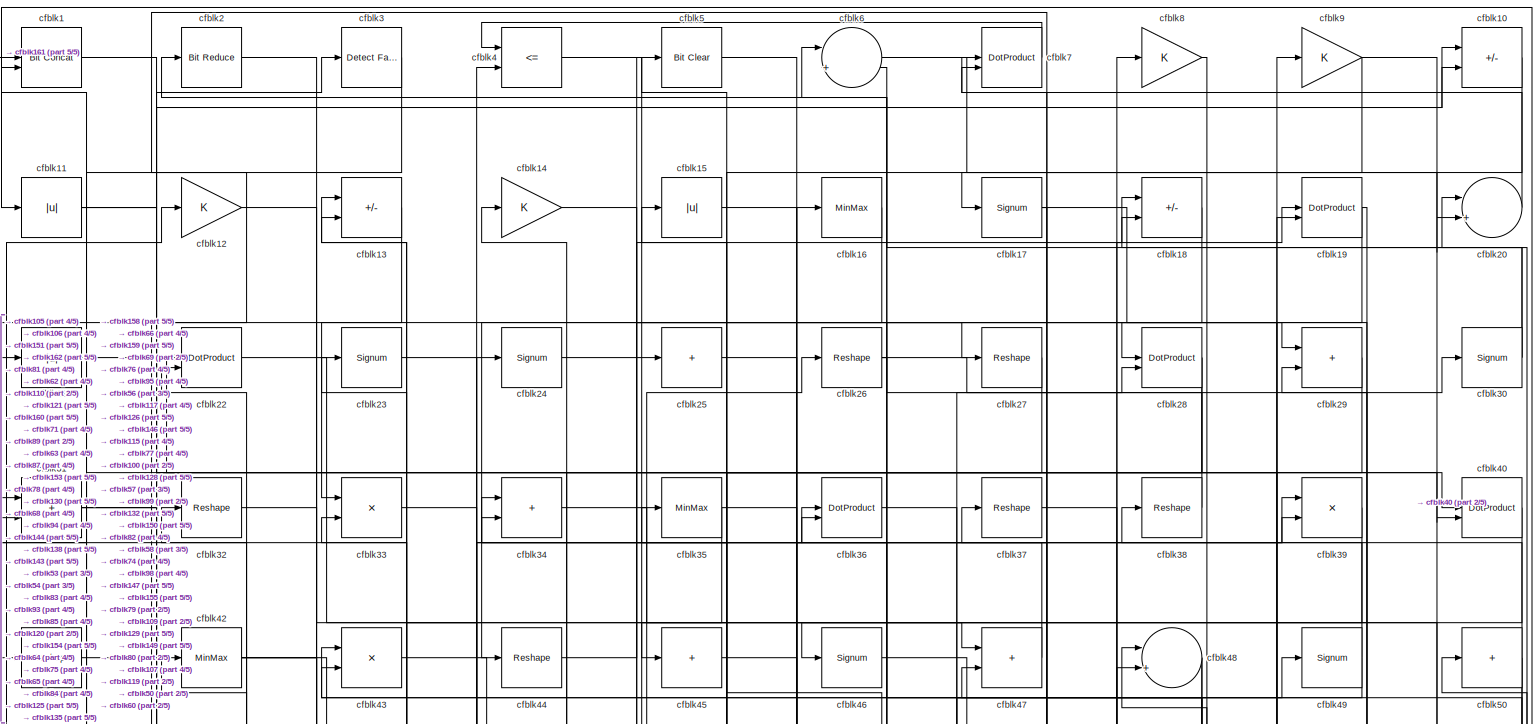
[diagram: root canvas - part 1/5, full width, top band]
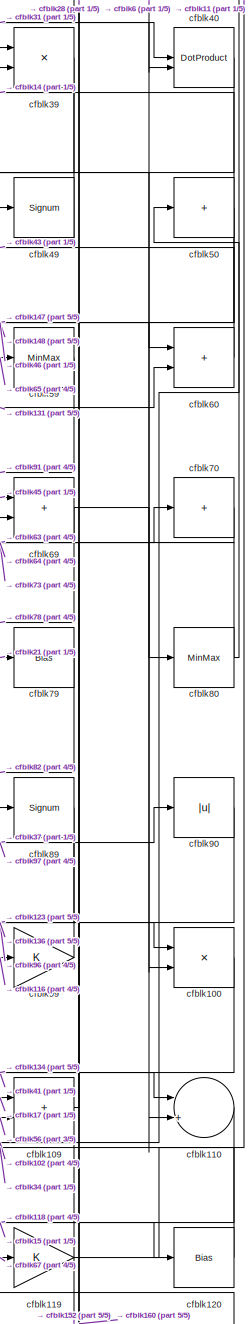
[diagram: root canvas - part 2/5, middle right region]
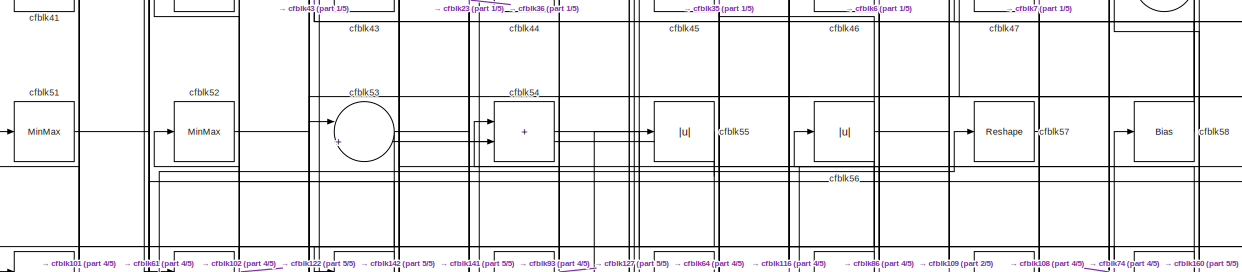
[diagram: root canvas - part 3/5, full width, top band]
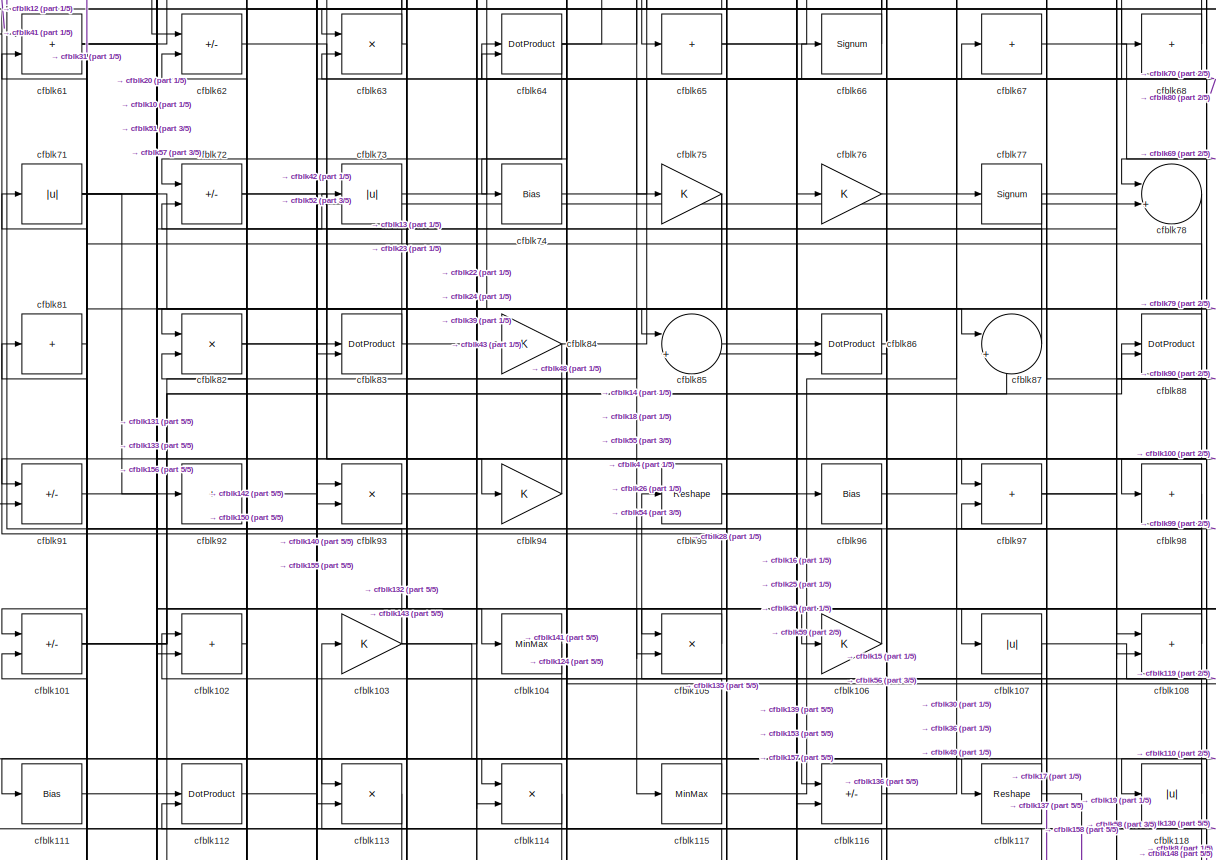
[diagram: root canvas - part 4/5, full width, middle band]
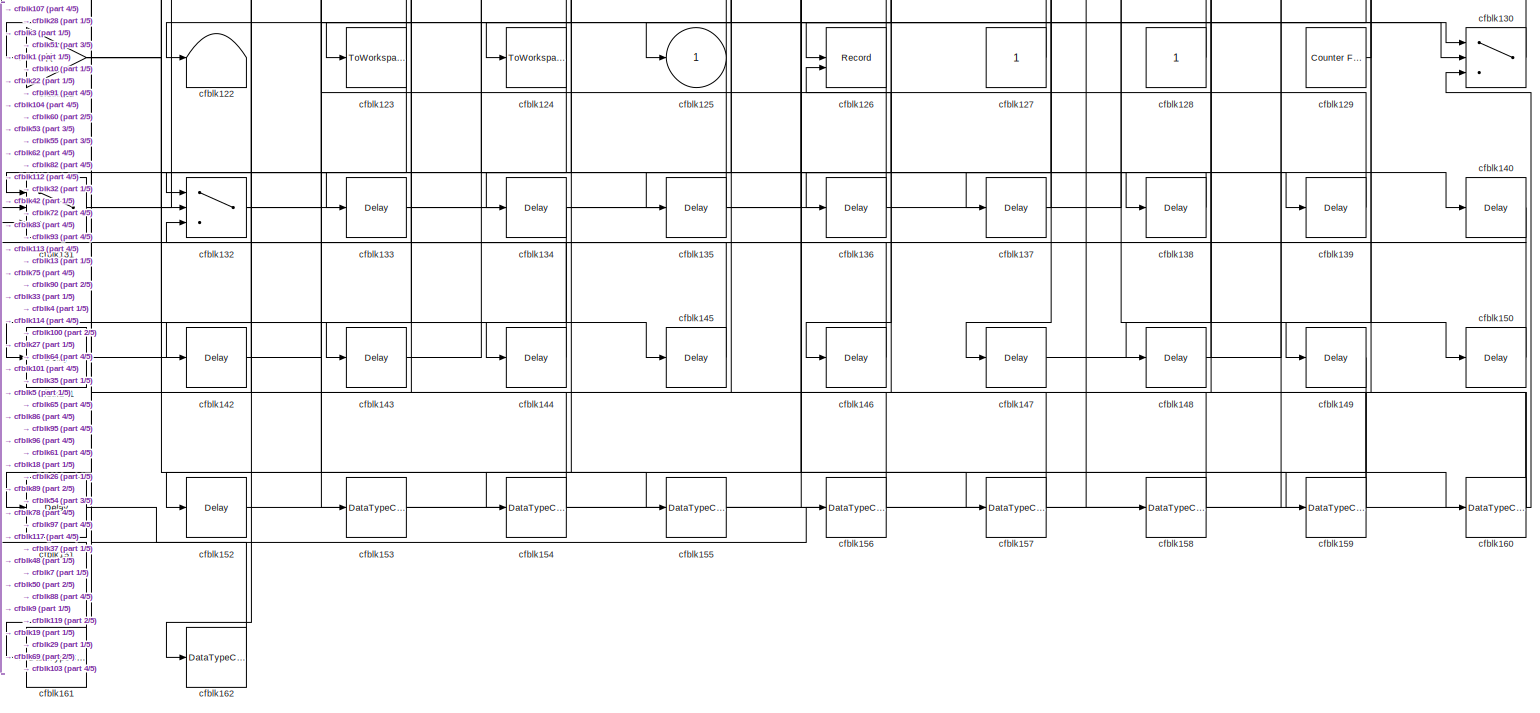
[diagram: root canvas - part 5/5, full width, bottom band]
MODEL slx_7d39bafed001
KIND model
CONFIG AbsTol = auto
CONFIG EnableMultiTasking = off
CONFIG FixedStep = auto
CONFIG MaxStep = auto
CONFIG MinStep = auto
CONFIG RelTol = 1e-3
CONFIG SampleTimeConstraint = Unconstrained
CONFIG SolverName = VariableStepAuto
CONFIG StartTime = 0.0
CONFIG StopTime = 10.0
BLOCK [Reference] cfblk1  REF=hdlsllib/Logic and Bit
Operations/Bit Concat
  SourceBlock = hdlsllib/Logic and Bit\nOperations/Bit Concat
  SourceType = Bit Concat
BLOCK [Sum] cfblk10
  IconShape = rectangular
  Inputs = +-
BLOCK [Product] cfblk100
  Inputs = */
  RndMeth = Zero
  SaturateOnIntegerOverflow = on
BLOCK [Sum] cfblk101
  IconShape = rectangular
  Inputs = +-
BLOCK [Sum] cfblk102
  IconShape = rectangular
BLOCK [Gain] cfblk103
BLOCK [MinMax] cfblk104
BLOCK [Product] cfblk105
  Inputs = */
  RndMeth = Zero
  SaturateOnIntegerOverflow = on
BLOCK [Gain] cfblk106
BLOCK [Abs] cfblk107
  SaturateOnIntegerOverflow = off
BLOCK [Sum] cfblk108
  IconShape = rectangular
BLOCK [Sum] cfblk109
  IconShape = rectangular
BLOCK [Abs] cfblk11
  SaturateOnIntegerOverflow = off
BLOCK [Sum] cfblk110
  Inputs = |++
BLOCK [Bias] cfblk111
  Bias = 0.0
  SaturateOnIntegerOverflow = off
BLOCK [DotProduct] cfblk112
  OutDataTypeStr = Inherit: Inherit via internal rule
BLOCK [Product] cfblk113
  Inputs = */
  RndMeth = Zero
  SaturateOnIntegerOverflow = on
BLOCK [Product] cfblk114
  Inputs = */
  RndMeth = Zero
  SaturateOnIntegerOverflow = on
BLOCK [MinMax] cfblk115
BLOCK [Sum] cfblk116
  IconShape = rectangular
  Inputs = +-
BLOCK [Reshape] cfblk117
BLOCK [Abs] cfblk118
  SaturateOnIntegerOverflow = off
BLOCK [Gain] cfblk119
BLOCK [Gain] cfblk12
BLOCK [Bias] cfblk120
  Bias = 0.0
  SaturateOnIntegerOverflow = off
BLOCK [Gain] cfblk121
BLOCK [Terminator] cfblk122
BLOCK [ToWorkspace] cfblk123
  MaxDataPoints = inf
  SampleTime = -1
  SaveFormat = Timeseries
  VariableName = simout
BLOCK [ToWorkspace] cfblk124
  MaxDataPoints = inf
  SampleTime = -1
  SaveFormat = Timeseries
  VariableName = simout
BLOCK [Outport] cfblk125
  VectorParamsAs1DForOutWhenUnconnected = off
BLOCK [Record] cfblk126
  CompatibilityTag = XY
  FileSettingsInternal = {"entries":[{"content":{"excelSettings":{"content":{},"type":"Streamout.ExcelSettings"}},"type":"Streamout.FileSettingStorage","uuid":""}],"packageUris":["http:\/\/schema.mathworks.com\/mf0\/streamout_blocks\/R2020a"],"version":"1.0"}
  Layout = [1 1]
  SignalsInternal = {"entries":[{"content":{"signals":[{"content":{"blockPath":[],"dimensions":[1],"domain":"","lineColor":"#a2142f","plots":[1],"port":1,"signalID":1674,"signalName":"XY Graph:1"},"type":"RecordBlkView.Signal","uuid":""},{"content":{"blockPath":[],"dimensions":[1],"domain":"","lineColor":"#139fff","plots":[1],"port":2,"signalID":1677,"signalName":"XY Graph:2"},"type":"RecordBlkView.Signal","uuid":""}...<+146ch>
  VisualizationBindings = {"xyplotplugin":{"info":[{"series":[{"bindingParametersList":[{"parameter":"X-Axis","signalID":1674,"signalName":"XY Graph:1"},{"parameter":"Y-Axis","signalID":1677,"signalName":"XY Graph:2"}],"seriesID":22489}],"subplotID":1}]}}
  st = -1
BLOCK [Constant] cfblk127
  SampleTime = -1
BLOCK [Constant] cfblk128
  SampleTime = -1
BLOCK [Reference] cfblk129  REF=hdlsllib/Sources/Counter
Free-Running
  SourceBlock = hdlsllib/Sources/Counter\nFree-Running
  SourceType = Counter Free-Running
BLOCK [Sum] cfblk13
  IconShape = rectangular
  Inputs = +-
BLOCK [Switch] cfblk130
  InputSameDT = off
  SaturateOnIntegerOverflow = off
BLOCK [Switch] cfblk131
  InputSameDT = off
  SaturateOnIntegerOverflow = off
BLOCK [Switch] cfblk132
  InputSameDT = off
  SaturateOnIntegerOverflow = off
BLOCK [Delay] cfblk133
  InputPortMap = u0
  SampleTime = 1
BLOCK [Delay] cfblk134
  InputPortMap = u0
  SampleTime = 1
BLOCK [Delay] cfblk135
  InputPortMap = u0
  SampleTime = 1
BLOCK [Delay] cfblk136
  InputPortMap = u0
  SampleTime = 1
BLOCK [Delay] cfblk137
  InputPortMap = u0
  SampleTime = 1
BLOCK [Delay] cfblk138
  InputPortMap = u0
  SampleTime = 1
BLOCK [Delay] cfblk139
  InputPortMap = u0
  SampleTime = 1
BLOCK [Gain] cfblk14
BLOCK [Delay] cfblk140
  InputPortMap = u0
  SampleTime = 1
BLOCK [Delay] cfblk141
  InputPortMap = u0
  SampleTime = 1
BLOCK [Delay] cfblk142
  InputPortMap = u0
  SampleTime = 1
BLOCK [Delay] cfblk143
  InputPortMap = u0
  SampleTime = 1
BLOCK [Delay] cfblk144
  InputPortMap = u0
  SampleTime = 1
BLOCK [Delay] cfblk145
  InputPortMap = u0
  SampleTime = 1
BLOCK [Delay] cfblk146
  InputPortMap = u0
  SampleTime = 1
BLOCK [Delay] cfblk147
  InputPortMap = u0
  SampleTime = 1
BLOCK [Delay] cfblk148
  InputPortMap = u0
  SampleTime = 1
BLOCK [Delay] cfblk149
  InputPortMap = u0
  SampleTime = 1
BLOCK [Abs] cfblk15
  SaturateOnIntegerOverflow = off
BLOCK [Delay] cfblk150
  InputPortMap = u0
  SampleTime = 1
BLOCK [Delay] cfblk151
  InputPortMap = u0
  SampleTime = 1
BLOCK [Delay] cfblk152
  InputPortMap = u0
  SampleTime = 1
BLOCK [DataTypeConversion] cfblk153
  OutDataTypeStr = uint8
  RndMeth = Floor
  SaturateOnIntegerOverflow = off
BLOCK [DataTypeConversion] cfblk154
  OutDataTypeStr = uint8
  RndMeth = Floor
  SaturateOnIntegerOverflow = off
BLOCK [DataTypeConversion] cfblk155
  OutDataTypeStr = uint8
  RndMeth = Floor
  SaturateOnIntegerOverflow = off
BLOCK [DataTypeConversion] cfblk156
  OutDataTypeStr = uint8
  RndMeth = Floor
  SaturateOnIntegerOverflow = off
BLOCK [DataTypeConversion] cfblk157
  OutDataTypeStr = uint8
  RndMeth = Floor
  SaturateOnIntegerOverflow = off
BLOCK [DataTypeConversion] cfblk158
  OutDataTypeStr = boolean
  RndMeth = Floor
  SaturateOnIntegerOverflow = off
BLOCK [DataTypeConversion] cfblk159
  RndMeth = Floor
  SaturateOnIntegerOverflow = off
BLOCK [MinMax] cfblk16
BLOCK [DataTypeConversion] cfblk160
  RndMeth = Floor
  SaturateOnIntegerOverflow = off
BLOCK [DataTypeConversion] cfblk161
  OutDataTypeStr = uint8
  RndMeth = Floor
  SaturateOnIntegerOverflow = off
BLOCK [DataTypeConversion] cfblk162
  OutDataTypeStr = uint8
  RndMeth = Floor
  SaturateOnIntegerOverflow = off
BLOCK [Signum] cfblk17
BLOCK [Sum] cfblk18
  IconShape = rectangular
  Inputs = +-
BLOCK [DotProduct] cfblk19
  OutDataTypeStr = Inherit: Inherit via internal rule
BLOCK [Reference] cfblk2  REF=hdlsllib/Logic and Bit
Operations/Bit Reduce
  SourceBlock = hdlsllib/Logic and Bit\nOperations/Bit Reduce
  SourceType = Bit Reduce
BLOCK [Sum] cfblk20
  Inputs = |++
BLOCK [Abs] cfblk21
  SaturateOnIntegerOverflow = off
BLOCK [DotProduct] cfblk22
  OutDataTypeStr = Inherit: Inherit via internal rule
BLOCK [Signum] cfblk23
BLOCK [Signum] cfblk24
BLOCK [Sum] cfblk25
  IconShape = rectangular
  Inputs = +
BLOCK [Reshape] cfblk26
BLOCK [Reshape] cfblk27
BLOCK [DotProduct] cfblk28
  OutDataTypeStr = Inherit: Inherit via internal rule
BLOCK [Sum] cfblk29
  IconShape = rectangular
BLOCK [Reference] cfblk3  REF=hdlsllib/Logic and Bit
Operations/Detect Fall
Negative
  SourceBlock = hdlsllib/Logic and Bit\nOperations/Detect Fall\nNegative
  SourceType = Detect Fall Negative
BLOCK [Signum] cfblk30
BLOCK [Sum] cfblk31
  IconShape = rectangular
BLOCK [Reshape] cfblk32
BLOCK [Product] cfblk33
  Inputs = */
  RndMeth = Zero
  SaturateOnIntegerOverflow = on
BLOCK [Sum] cfblk34
  IconShape = rectangular
BLOCK [MinMax] cfblk35
BLOCK [DotProduct] cfblk36
  OutDataTypeStr = Inherit: Inherit via internal rule
BLOCK [Reshape] cfblk37
BLOCK [Reshape] cfblk38
BLOCK [Product] cfblk39
  Inputs = */
  RndMeth = Zero
  SaturateOnIntegerOverflow = on
BLOCK [RelationalOperator] cfblk4
  InputSameDT = off
  Operator = <=
  OutDataTypeStr = boolean
BLOCK [DotProduct] cfblk40
  OutDataTypeStr = Inherit: Inherit via internal rule
BLOCK [Reshape] cfblk41
BLOCK [MinMax] cfblk42
BLOCK [Product] cfblk43
  Inputs = */
  RndMeth = Zero
  SaturateOnIntegerOverflow = on
BLOCK [Reshape] cfblk44
BLOCK [Sum] cfblk45
  IconShape = rectangular
  Inputs = +
BLOCK [Signum] cfblk46
BLOCK [Sum] cfblk47
  IconShape = rectangular
BLOCK [Sum] cfblk48
  Inputs = |++
BLOCK [Signum] cfblk49
BLOCK [Reference] cfblk5  REF=simulink/Logic and Bit
Operations/Bit Clear
  LibrarySourceBlock = hdlsllib/Logic and Bit\nOperations/Bit Clear
  SourceBlock = simulink/Logic and Bit\nOperations/Bit Clear
  SourceType = Bit Clear
BLOCK [Sum] cfblk50
  IconShape = rectangular
  Inputs = +
BLOCK [MinMax] cfblk51
BLOCK [MinMax] cfblk52
BLOCK [Sum] cfblk53
  Inputs = |++
BLOCK [Sum] cfblk54
  IconShape = rectangular
BLOCK [Abs] cfblk55
  SaturateOnIntegerOverflow = off
BLOCK [Abs] cfblk56
  SaturateOnIntegerOverflow = off
BLOCK [Reshape] cfblk57
BLOCK [Bias] cfblk58
  Bias = 0.0
  SaturateOnIntegerOverflow = off
BLOCK [MinMax] cfblk59
BLOCK [Sum] cfblk6
  Inputs = |++
BLOCK [Sum] cfblk60
  IconShape = rectangular
BLOCK [Sum] cfblk61
  IconShape = rectangular
BLOCK [Sum] cfblk62
  IconShape = rectangular
  Inputs = +-
BLOCK [Product] cfblk63
  Inputs = */
  RndMeth = Zero
  SaturateOnIntegerOverflow = on
BLOCK [DotProduct] cfblk64
  OutDataTypeStr = Inherit: Inherit via internal rule
BLOCK [Sum] cfblk65
  IconShape = rectangular
  Inputs = +
BLOCK [Signum] cfblk66
BLOCK [Sum] cfblk67
  IconShape = rectangular
  Inputs = +
BLOCK [Sum] cfblk68
  IconShape = rectangular
  Inputs = +
BLOCK [Sum] cfblk69
  IconShape = rectangular
BLOCK [DotProduct] cfblk7
  OutDataTypeStr = Inherit: Inherit via internal rule
BLOCK [Sum] cfblk70
  IconShape = rectangular
  Inputs = +
BLOCK [Abs] cfblk71
  SaturateOnIntegerOverflow = off
BLOCK [Sum] cfblk72
  IconShape = rectangular
  Inputs = +-
BLOCK [Abs] cfblk73
  SaturateOnIntegerOverflow = off
BLOCK [Bias] cfblk74
  Bias = 0.0
  SaturateOnIntegerOverflow = off
BLOCK [Gain] cfblk75
BLOCK [Gain] cfblk76
BLOCK [Signum] cfblk77
BLOCK [Sum] cfblk78
  Inputs = |++
BLOCK [Bias] cfblk79
  Bias = 0.0
  SaturateOnIntegerOverflow = off
BLOCK [Gain] cfblk8
BLOCK [MinMax] cfblk80
BLOCK [Sum] cfblk81
  IconShape = rectangular
  Inputs = +
BLOCK [Product] cfblk82
  Inputs = */
  RndMeth = Zero
  SaturateOnIntegerOverflow = on
BLOCK [DotProduct] cfblk83
  OutDataTypeStr = Inherit: Inherit via internal rule
BLOCK [Gain] cfblk84
BLOCK [Sum] cfblk85
  Inputs = |++
BLOCK [DotProduct] cfblk86
  OutDataTypeStr = Inherit: Inherit via internal rule
BLOCK [Sum] cfblk87
  Inputs = |++
BLOCK [DotProduct] cfblk88
  OutDataTypeStr = Inherit: Inherit via internal rule
BLOCK [Signum] cfblk89
BLOCK [Gain] cfblk9
BLOCK [Abs] cfblk90
  SaturateOnIntegerOverflow = off
BLOCK [Sum] cfblk91
  IconShape = rectangular
  Inputs = +-
BLOCK [Sum] cfblk92
  IconShape = rectangular
  Inputs = +
BLOCK [Product] cfblk93
  Inputs = */
  RndMeth = Zero
  SaturateOnIntegerOverflow = on
BLOCK [Gain] cfblk94
BLOCK [Reshape] cfblk95
BLOCK [Bias] cfblk96
  Bias = 0.0
  SaturateOnIntegerOverflow = off
BLOCK [Sum] cfblk97
  IconShape = rectangular
BLOCK [Sum] cfblk98
  IconShape = rectangular
  Inputs = +
BLOCK [Gain] cfblk99
LINE cfblk100:1 -> cfblk134:1
NET cfblk101:1 -> cfblk66:1, cfblk87:2, cfblk88:1
LINE cfblk102:1 -> cfblk52:1
NET cfblk103:1 -> cfblk117:1, cfblk67:1, cfblk71:1
LINE cfblk104:1 -> cfblk111:1
LINE cfblk105:1 -> cfblk41:1
LINE cfblk106:1 -> cfblk12:1
NET cfblk107:1 -> cfblk131:3, cfblk20:1
NET cfblk108:1 -> cfblk81:1, cfblk85:2
LINE cfblk109:1 -> cfblk28:1
LINE cfblk10:1 -> cfblk125:1
LINE cfblk110:1 -> cfblk118:1
LINE cfblk111:1 -> cfblk73:1
LINE cfblk112:1 -> cfblk155:1
LINE cfblk113:1 -> cfblk132:1
LINE cfblk114:1 -> cfblk141:1
NET cfblk115:1 -> cfblk23:1, cfblk30:1
LINE cfblk116:1 -> cfblk99:1
NET cfblk117:1 -> cfblk158:1, cfblk36:2
LINE cfblk118:1 -> cfblk95:1
NET cfblk119:1 -> cfblk102:1, cfblk11:1, cfblk152:1
NET cfblk11:1 -> cfblk3:1, cfblk40:2
LINE cfblk120:1 -> cfblk34:2
NET cfblk121:1 -> cfblk10:1, cfblk144:1, cfblk145:1
LINE cfblk127:1 -> cfblk54:1
LINE cfblk128:1 -> cfblk7:2
LINE cfblk129:1 -> cfblk29:2
LINE cfblk12:1 -> cfblk78:2
LINE cfblk130:1 -> cfblk103:1
NET cfblk131:1 -> cfblk104:1, cfblk60:2
NET cfblk132:1 -> cfblk48:2, cfblk93:1
LINE cfblk133:1 -> cfblk86:1
LINE cfblk134:1 -> cfblk161:1
LINE cfblk135:1 -> cfblk101:2
LINE cfblk136:1 -> cfblk61:1
LINE cfblk137:1 -> cfblk97:2
LINE cfblk138:1 -> cfblk132:2
LINE cfblk139:1 -> cfblk83:1
LINE cfblk13:1 -> cfblk21:1
LINE cfblk140:1 -> cfblk132:3
LINE cfblk141:1 -> cfblk53:1
LINE cfblk142:1 -> cfblk82:2
LINE cfblk143:1 -> cfblk4:2
LINE cfblk144:1 -> cfblk13:2
LINE cfblk145:1 -> cfblk131:2
LINE cfblk146:1 -> cfblk22:1
LINE cfblk147:1 -> cfblk19:2
LINE cfblk148:1 -> cfblk88:2
LINE cfblk149:1 -> cfblk162:1
LINE cfblk14:1 -> cfblk75:1
LINE cfblk150:1 -> cfblk62:2
LINE cfblk151:1 -> cfblk156:1
LINE cfblk152:1 -> cfblk130:3
LINE cfblk153:1 -> cfblk96:1
LINE cfblk154:1 -> cfblk32:1
LINE cfblk155:1 -> cfblk9:1
LINE cfblk156:1 -> cfblk112:1
LINE cfblk157:1 -> cfblk112:2
LINE cfblk158:1 -> cfblk5:1
NET cfblk159:1 -> cfblk126:2, cfblk33:2
LINE cfblk15:1 -> cfblk120:1
NET cfblk160:1 -> cfblk48:1, cfblk51:1, cfblk69:2
LINE cfblk161:1 -> cfblk1:1
LINE cfblk162:1 -> cfblk1:2
LINE cfblk16:1 -> cfblk33:1
NET cfblk17:1 -> cfblk107:1, cfblk109:1
LINE cfblk18:1 -> cfblk126:1
NET cfblk19:1 -> cfblk149:1, cfblk44:1
LINE cfblk1:1 -> cfblk160:1
LINE cfblk20:1 -> cfblk62:1
LINE cfblk21:1 -> cfblk79:1
LINE cfblk22:1 -> cfblk84:1
LINE cfblk23:1 -> cfblk54:2
LINE cfblk24:1 -> cfblk29:1
LINE cfblk25:1 -> cfblk76:1
NET cfblk26:1 -> cfblk146:1, cfblk28:2
LINE cfblk27:1 -> cfblk154:1
NET cfblk28:1 -> cfblk105:1, cfblk121:1
LINE cfblk29:1 -> cfblk135:1
LINE cfblk2:1 -> cfblk47:1
NET cfblk30:1 -> cfblk18:1, cfblk6:2
NET cfblk31:1 -> cfblk40:1, cfblk89:1
LINE cfblk32:1 -> cfblk153:1
LINE cfblk33:1 -> cfblk138:1
LINE cfblk34:1 -> cfblk80:1
NET cfblk35:1 -> cfblk130:2, cfblk63:1
LINE cfblk36:1 -> cfblk77:1
LINE cfblk37:1 -> cfblk150:1
LINE cfblk38:1 -> cfblk2:1
LINE cfblk39:1 -> cfblk46:1
LINE cfblk3:1 -> cfblk151:1
LINE cfblk40:1 -> cfblk45:1
LINE cfblk41:1 -> cfblk110:1
NET cfblk42:1 -> cfblk130:1, cfblk68:1, cfblk94:1
LINE cfblk43:1 -> cfblk85:1
LINE cfblk44:1 -> cfblk25:1
LINE cfblk45:1 -> cfblk69:1
LINE cfblk46:1 -> cfblk100:2
LINE cfblk47:1 -> cfblk34:1
NET cfblk48:1 -> cfblk74:1, cfblk83:2
NET cfblk49:1 -> cfblk38:1, cfblk47:2
NET cfblk4:1 -> cfblk27:1, cfblk65:1
NET cfblk50:1 -> cfblk147:1, cfblk148:1, cfblk14:1
LINE cfblk51:1 -> cfblk86:2
LINE cfblk52:1 -> cfblk93:2
NET cfblk53:1 -> cfblk122:1, cfblk36:1
LINE cfblk54:1 -> cfblk108:2
NET cfblk55:1 -> cfblk142:1, cfblk53:2
NET cfblk56:1 -> cfblk101:1, cfblk109:2, cfblk116:2, cfblk35:1
LINE cfblk57:1 -> cfblk7:1
NET cfblk58:1 -> cfblk43:2, cfblk6:1
LINE cfblk59:1 -> cfblk91:2
LINE cfblk5:1 -> cfblk159:1
LINE cfblk60:1 -> cfblk43:1
NET cfblk61:1 -> cfblk105:2, cfblk114:2, cfblk57:1
LINE cfblk62:1 -> cfblk87:1
NET cfblk63:1 -> cfblk113:1, cfblk22:2
NET cfblk64:1 -> cfblk124:1, cfblk18:2, cfblk55:1, cfblk72:1
NET cfblk65:1 -> cfblk157:1, cfblk59:1
LINE cfblk66:1 -> cfblk15:1
LINE cfblk67:1 -> cfblk119:1
LINE cfblk68:1 -> cfblk31:2
NET cfblk69:1 -> cfblk110:2, cfblk78:1
LINE cfblk6:1 -> cfblk60:1
LINE cfblk70:1 -> cfblk63:2
NET cfblk71:1 -> cfblk10:2, cfblk115:1, cfblk116:1, cfblk92:1
NET cfblk72:1 -> cfblk140:1, cfblk97:1
LINE cfblk73:1 -> cfblk70:1
LINE cfblk74:1 -> cfblk58:1
NET cfblk75:1 -> cfblk131:1, cfblk143:1
LINE cfblk76:1 -> cfblk49:1
NET cfblk77:1 -> cfblk106:1, cfblk8:1
LINE cfblk78:1 -> cfblk137:1
LINE cfblk79:1 -> cfblk82:1
LINE cfblk7:1 -> cfblk4:1
NET cfblk80:1 -> cfblk50:1, cfblk64:2
LINE cfblk81:1 -> cfblk31:1
NET cfblk82:1 -> cfblk113:2, cfblk19:1
NET cfblk83:1 -> cfblk24:1, cfblk72:2
NET cfblk84:1 -> cfblk102:2, cfblk26:1
LINE cfblk85:1 -> cfblk39:2
LINE cfblk86:1 -> cfblk56:1
LINE cfblk87:1 -> cfblk42:1
NET cfblk88:1 -> cfblk61:2, cfblk91:1
LINE cfblk89:1 -> cfblk136:1
LINE cfblk8:1 -> cfblk98:1
LINE cfblk90:1 -> cfblk123:1
LINE cfblk91:1 -> cfblk133:1
LINE cfblk92:1 -> cfblk64:1
LINE cfblk93:1 -> cfblk39:1
LINE cfblk94:1 -> cfblk13:1
NET cfblk95:1 -> cfblk139:1, cfblk16:1
LINE cfblk96:1 -> cfblk100:1
NET cfblk97:1 -> cfblk108:1, cfblk90:1
LINE cfblk98:1 -> cfblk114:1
LINE cfblk99:1 -> cfblk37:1
NET cfblk9:1 -> cfblk17:1, cfblk20:2
note: NET lines group one-source signal fan-out (src -> all destinations, sorted); 1:1 wires keep LINE
